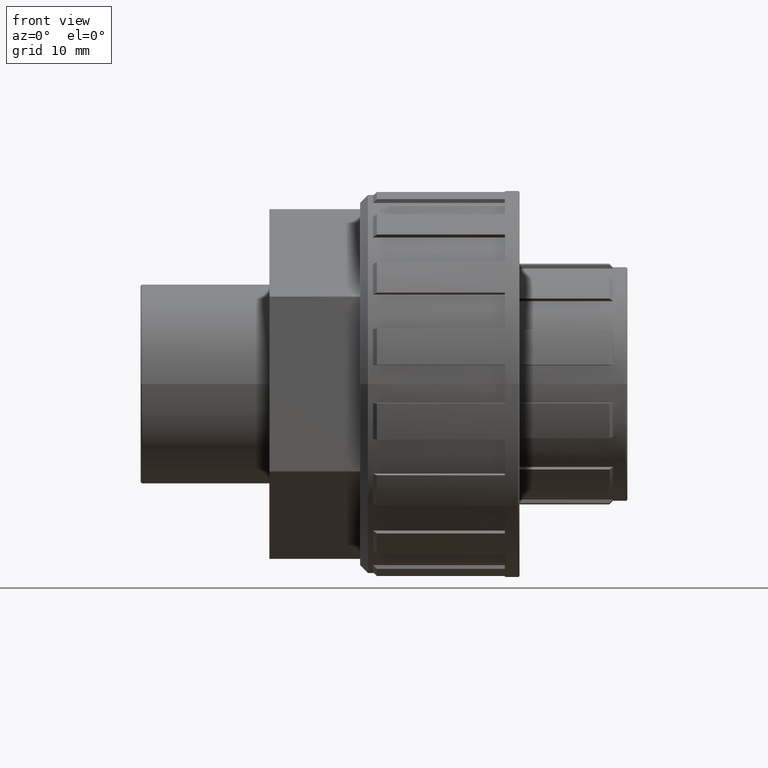
[diagram: clean part render]
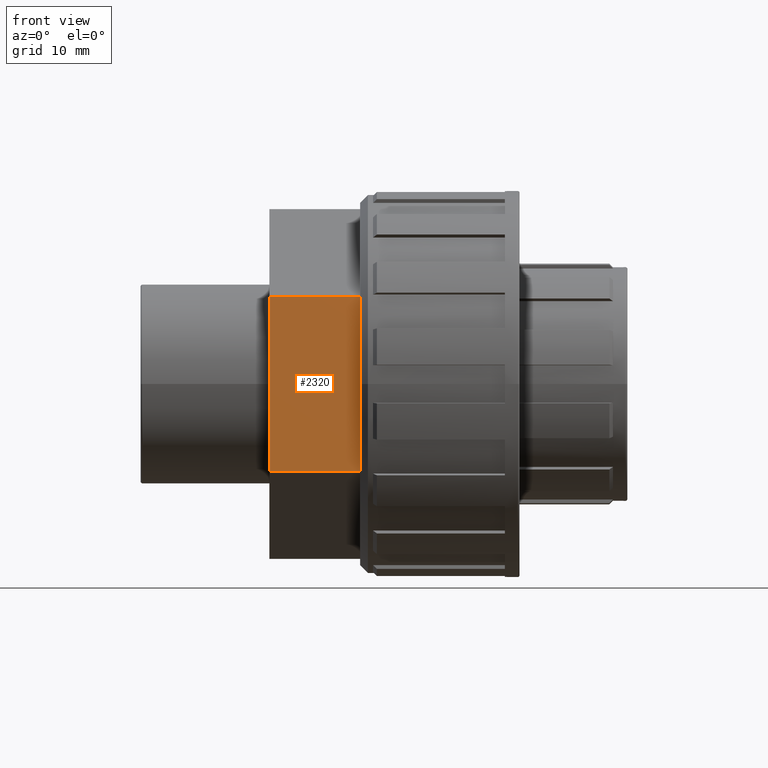
[diagram: same view with one face highlighted and labeled with its STEP entity id]
A machine part, front view. The second image highlights one B-rep face of the part: STEP entity #2320.
In plain terms, the highlighted planar face has unit normal (0, -1, 0).
Its self-contained STEP definition (entity closure, byte-faithful):
#214=FACE_OUTER_BOUND('',#346,.T.);
#346=EDGE_LOOP('',(#1552,#1553,#1554,#1555));
#499=LINE('',#3452,#725);
#508=LINE('',#3472,#734);
#510=LINE('',#3475,#736);
#511=LINE('',#3476,#737);
#725=VECTOR('',#2712,12.);
#734=VECTOR('',#2727,12.);
#736=VECTOR('',#2731,23.094010767585);
#737=VECTOR('',#2732,23.094010767585);
#949=VERTEX_POINT('',#3446);
#951=VERTEX_POINT('',#3450);
#958=VERTEX_POINT('',#3469);
#959=VERTEX_POINT('',#3471);
#1190=EDGE_CURVE('',#951,#949,#499,.T.);
#1199=EDGE_CURVE('',#959,#958,#508,.T.);
#1201=EDGE_CURVE('',#949,#958,#510,.T.);
#1202=EDGE_CURVE('',#951,#959,#511,.T.);
#1552=ORIENTED_EDGE('',*,*,#1201,.F.);
#1553=ORIENTED_EDGE('',*,*,#1190,.F.);
#1554=ORIENTED_EDGE('',*,*,#1202,.T.);
#1555=ORIENTED_EDGE('',*,*,#1199,.T.);
#2238=PLANE('',#2454);
#2320=ADVANCED_FACE('',(#214),#2238,.T.);
#2454=AXIS2_PLACEMENT_3D('',#3474,#2729,#2730);
#2712=DIRECTION('',(1.,2.46716227694478E-16,0.));
#2727=DIRECTION('',(1.,2.46716227694478E-16,0.));
#2729=DIRECTION('center_axis',(2.46716227694478E-16,-1.,1.63451828342603E-15));
#2730=DIRECTION('ref_axis',(0.,-1.77635683940025E-15,-1.));
#2731=DIRECTION('',(3.00256137591827E-31,-1.63451828342603E-15,-1.));
#2732=DIRECTION('',(3.00256137591827E-31,-1.63451828342603E-15,-1.));
#3446=CARTESIAN_POINT('',(-3.15,-20.,11.5470053837925));
#3450=CARTESIAN_POINT('',(-15.15,-20.,11.5470053837925));
#3452=CARTESIAN_POINT('',(-15.15,-20.,11.5470053837925));
#3469=CARTESIAN_POINT('',(-3.15,-20.,-11.5470053837925));
#3471=CARTESIAN_POINT('',(-15.15,-20.,-11.5470053837925));
#3472=CARTESIAN_POINT('',(-15.15,-20.,-11.5470053837925));
#3474=CARTESIAN_POINT('Origin',(-15.15,-20.,11.5470053837925));
#3475=CARTESIAN_POINT('',(-3.15,-20.,5.77350269189627));
#3476=CARTESIAN_POINT('',(-15.15,-20.,11.5470053837925));